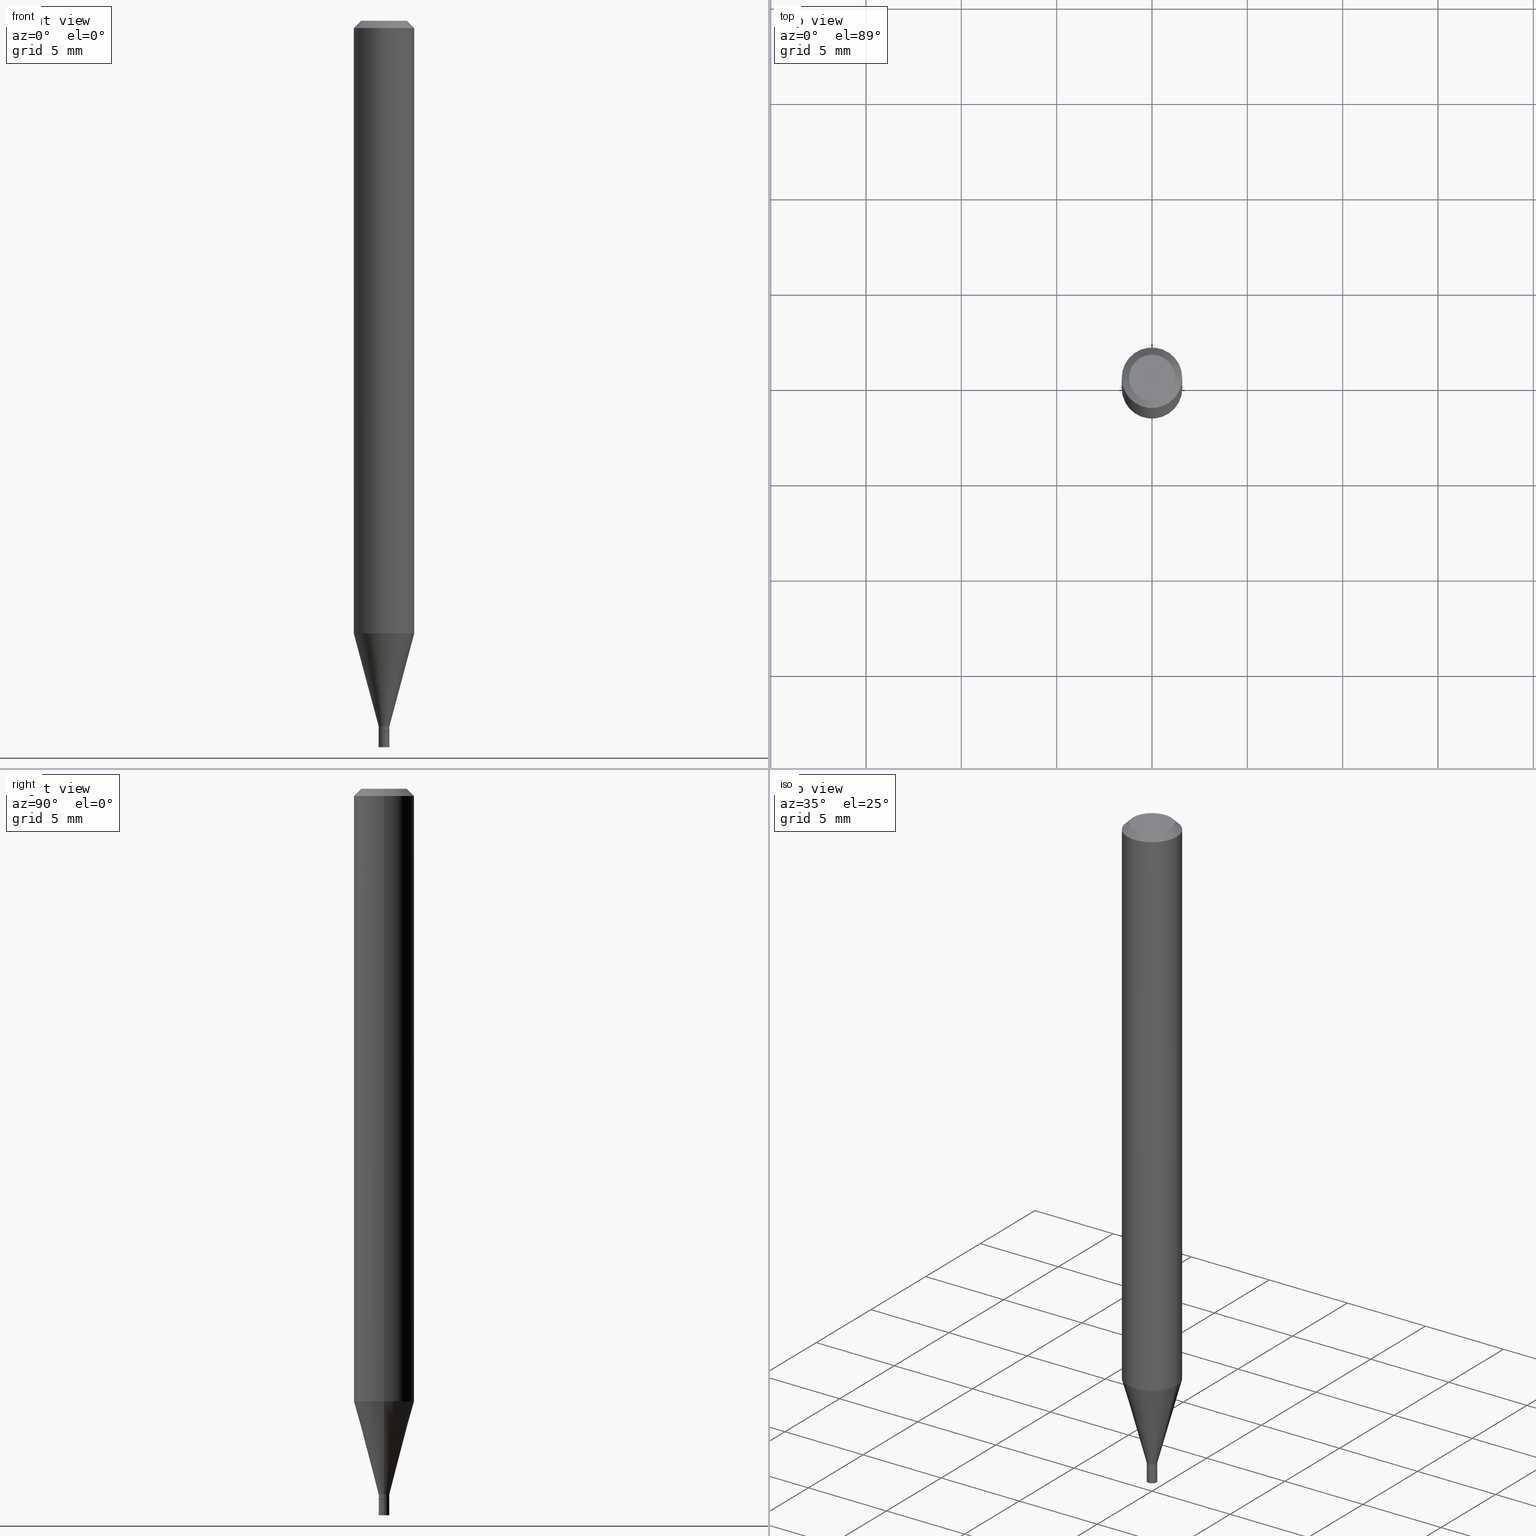
[diagram: canonical four-view strip — front | top / right | iso, engineering-drawing reading convention]
A machine part, canonical four-view strip (front | top / right | iso — engineering-drawing reading convention). The complete STEP part file that produces these views, byte-faithful:
ISO-10303-21;
HEADER;
FILE_DESCRIPTION (( 'STEP AP203' ),
    '1' );
FILE_NAME ('00318.STEP',
    '2024-03-19T20:58:09',
    ( '' ),
    ( '' ),
    'SwSTEP 2.0',
    'SolidWorks 2023',
    '' );
FILE_SCHEMA (( 'CONFIG_CONTROL_DESIGN' ));
ENDSEC;

DATA;
#1 = CLOSED_SHELL ( 'NONE', ( #160, #391, #64, #211, #240, #399, #170, #101, #293, #382, #408, #426 ) ) ;
#2 = EDGE_CURVE ( 'NONE', #431, #316, #237, .T. ) ;
#3 = DIRECTION ( 'NONE',  ( -2.445468806185136597E-29, 3.491481338843145583E-15, 1.000000000000000000 ) ) ;
#4 = VERTEX_POINT ( 'NONE', #100 ) ;
#5 = AXIS2_PLACEMENT_3D ( 'NONE', #419, #63, #340 ) ;
#6 = DIRECTION ( 'NONE',  ( -2.445468806185136597E-29, 3.491481338843145583E-15, 1.000000000000000000 ) ) ;
#7 = ORIENTED_EDGE ( 'NONE', *, *, #412, .T. ) ;
#8 = DIRECTION ( 'NONE',  ( 1.000000000000000000, -6.982962677686265922E-15, 4.876176775795935793E-29 ) ) ;
#9 = CARTESIAN_POINT ( 'NONE',  ( 3.587502738673595692E-29, -5.122003124082895786E-15, -1.467000000000000304 ) ) ;
#10 = DIMENSIONAL_EXPONENTS ( 1.000000000000000000, 0.000000000000000000, 0.000000000000000000, 0.000000000000000000, 0.000000000000000000, 0.000000000000000000, 0.000000000000000000 ) ;
#11 = APPROVAL ( #112, 'UNSPECIFIED' ) ;
#12 = VECTOR ( 'NONE', #323, 39.37007874015748143 ) ;
#13 = VECTOR ( 'NONE', #171, 39.37007874015747433 ) ;
#14 = APPROVAL_STATUS ( 'not_yet_approved' ) ;
#15 = ORGANIZATION ( 'UNSPECIFIED', 'UNSPECIFIED', '' ) ;
#16 = CC_DESIGN_DATE_AND_TIME_ASSIGNMENT ( #136, #223, ( #465 ) ) ;
#17 = DIRECTION ( 'NONE',  ( -2.445468806185136597E-29, 3.491481338843145583E-15, 1.000000000000000000 ) ) ;
#18 = LINE ( 'NONE', #336, #70 ) ;
#19 = DIRECTION ( 'NONE',  ( 1.000000000000000000, -6.982962677686265922E-15, 4.876176775795936353E-29 ) ) ;
#20 = CARTESIAN_POINT ( 'NONE',  ( 0.000000000000000000, 0.000000000000000000, 0.000000000000000000 ) ) ;
#21 = CARTESIAN_POINT ( 'NONE',  ( 3.668203209277705088E-31, -5.237222008264718399E-17, -0.01499999999999999944 ) ) ;
#22 = CARTESIAN_POINT ( 'NONE',  ( -0.06250000000000000000, 3.840629472727444916E-16, -0.01499999999999999944 ) ) ;
#23 = FACE_OUTER_BOUND ( 'NONE', #147, .T. ) ;
#24 = FACE_OUTER_BOUND ( 'NONE', #284, .T. ) ;
#25 = SHAPE_DEFINITION_REPRESENTATION ( #138, #278 ) ;
#26 = EDGE_CURVE ( 'NONE', #77, #109, #222, .T. ) ;
#27 = CARTESIAN_POINT ( 'NONE',  ( -0.01099999999999992130, -5.008928609760852258E-15, -1.457000000000000073 ) ) ;
#28 = CIRCLE ( 'NONE', #90, 0.04749999999999999362 ) ;
#29 = DIRECTION ( 'NONE',  ( 1.000000000000000000, -6.982962677686266711E-15, 4.876176775795935793E-29 ) ) ;
#30 = CIRCLE ( 'NONE', #289, 0.06250000000000000000 ) ;
#31 = CC_DESIGN_APPROVAL ( #76, ( #465 ) ) ;
#32 = ORIENTED_EDGE ( 'NONE', *, *, #310, .F. ) ;
#33 = CC_DESIGN_PERSON_AND_ORGANIZATION_ASSIGNMENT ( #221, #424, ( #277 ) ) ;
#34 = VERTEX_POINT ( 'NONE', #410 ) ;
#35 = ADVANCED_FACE ( 'NONE', ( #228 ), #334, .F. ) ;
#36 = ORIENTED_EDGE ( 'NONE', *, *, #270, .F. ) ;
#37 = EDGE_CURVE ( 'NONE', #242, #34, #28, .T. ) ;
#38 = ORIENTED_EDGE ( 'NONE', *, *, #452, .T. ) ;
#39 = CONICAL_SURFACE ( 'NONE', #417, 0.01049999999999999892, 0.7853981633974718157 ) ;
#40 = AXIS2_PLACEMENT_3D ( 'NONE', #411, #267, #56 ) ;
#41 = CARTESIAN_POINT ( 'NONE',  ( 3.576687321579069994E-29, -5.368277968210015545E-15, -1.500000000000000222 ) ) ;
#42 = ORIENTED_EDGE ( 'NONE', *, *, #327, .T. ) ;
#43 = AXIS2_PLACEMENT_3D ( 'NONE', #196, #134, #261 ) ;
#44 = DIRECTION ( 'NONE',  ( 1.000000000000000000, -6.982962677686267499E-15, 4.852736867747366768E-29 ) ) ;
#45 = ORIENTED_EDGE ( 'NONE', *, *, #197, .T. ) ;
#46 = FACE_OUTER_BOUND ( 'NONE', #122, .T. ) ;
#47 = EDGE_CURVE ( 'NONE', #114, #300, #401, .T. ) ;
#48 = CARTESIAN_POINT ( 'NONE',  ( 3.587502738673595692E-29, -5.122003124082895786E-15, -1.467000000000000304 ) ) ;
#49 = CLOSED_SHELL ( 'NONE', ( #73, #428, #243, #35 ) ) ;
#50 = CIRCLE ( 'NONE', #330, 0.01099999999999992130 ) ;
#51 = CONICAL_SURFACE ( 'NONE', #118, 0.01099999999999992130, 0.2617993877991500740 ) ;
#52 = APPROVAL_DATE_TIME ( #167, #76 ) ;
#53 = PRODUCT ( '00318', '00318', '', ( #371 ) ) ;
#54 = CARTESIAN_POINT ( 'NONE',  ( -1.575719463841376315E-44, 2.249709785436367094E-30, 6.443424916547820620E-16 ) ) ;
#55 = CC_DESIGN_APPROVAL ( #11, ( #393 ) ) ;
#56 = DIRECTION ( 'NONE',  ( 1.000000000000000000, -6.982962677686266711E-15, 4.876176775795935793E-29 ) ) ;
#57 = DESIGN_CONTEXT ( 'detailed design', #355, 'design' ) ;
#58 = ORIENTED_EDGE ( 'NONE', *, *, #324, .T. ) ;
#59 = PERSON_AND_ORGANIZATION ( #128, #15 ) ;
#60 = CARTESIAN_POINT ( 'NONE',  ( 7.681258945458479888E-17, 0.01099999999999487672, -1.467000000000000304 ) ) ;
#61 = DIRECTION ( 'NONE',  ( -2.445468806185136597E-29, 3.491481338843145583E-15, 1.000000000000000000 ) ) ;
#62 = APPROVAL_ROLE ( '' ) ;
#63 = DIRECTION ( 'NONE',  ( -2.445468806185136597E-29, 3.491481338843145583E-15, 1.000000000000000000 ) ) ;
#64 = ADVANCED_FACE ( 'NONE', ( #367 ), #183, .T. ) ;
#65 = DIRECTION ( 'NONE',  ( -2.445468806185136597E-29, 3.491481338843145583E-15, 1.000000000000000000 ) ) ;
#66 = DATE_AND_TIME ( #341, #192 ) ;
#67 = DIRECTION ( 'NONE',  ( 1.000000000000000000, -6.982962677686262766E-15, 0.000000000000000000 ) ) ;
#68 = CARTESIAN_POINT ( 'NONE',  ( 0.01049999999999999892, -5.195324232198601302E-15, -1.467000000000000304 ) ) ;
#69 = EDGE_CURVE ( 'NONE', #4, #354, #18, .T. ) ;
#70 = VECTOR ( 'NONE', #301, 39.37007874015748143 ) ;
#71 = DATE_AND_TIME ( #203, #247 ) ;
#72 = ORIENTED_EDGE ( 'NONE', *, *, #270, .T. ) ;
#73 = ADVANCED_FACE ( 'NONE', ( #165 ), #305, .T. ) ;
#74 = ORIENTED_EDGE ( 'NONE', *, *, #415, .T. ) ;
#75 = ORIENTED_EDGE ( 'NONE', *, *, #441, .F. ) ;
#76 = APPROVAL ( #14, 'UNSPECIFIED' ) ;
#77 = VERTEX_POINT ( 'NONE', #373 ) ;
#78 = UNCERTAINTY_MEASURE_WITH_UNIT (LENGTH_MEASURE( 1.000000000000000082E-05 ), #403, 'distance_accuracy_value', 'NONE');
#79 = EDGE_CURVE ( 'NONE', #422, #297, #443, .T. ) ;
#80 = AXIS2_PLACEMENT_3D ( 'NONE', #397, #219, #363 ) ;
#81 = AXIS2_PLACEMENT_3D ( 'NONE', #379, #108, #67 ) ;
#82 = APPROVAL_PERSON_ORGANIZATION ( #191, #313, #62 ) ;
#83 = DIRECTION ( 'NONE',  ( -2.445468806185136597E-29, 3.491481338843145583E-15, 1.000000000000000000 ) ) ;
#84 = ORIENTED_EDGE ( 'NONE', *, *, #452, .F. ) ;
#85 = DIRECTION ( 'NONE',  ( -2.445468806185136877E-29, 3.491481338843145188E-15, 1.000000000000000000 ) ) ;
#86 = ORIENTED_EDGE ( 'NONE', *, *, #26, .F. ) ;
#87 = FACE_OUTER_BOUND ( 'NONE', #387, .T. ) ;
#88 = FACE_OUTER_BOUND ( 'NONE', #155, .T. ) ;
#89 = PERSON_AND_ORGANIZATION_ROLE ( 'creator' ) ;
#90 = AXIS2_PLACEMENT_3D ( 'NONE', #54, #266, #163 ) ;
#91 = CARTESIAN_POINT ( 'NONE',  ( 3.668203209277705088E-31, -5.237222008264718399E-17, -0.01499999999999999944 ) ) ;
#92 = ORIENTED_EDGE ( 'NONE', *, *, #441, .T. ) ;
#93 = VECTOR ( 'NONE', #205, 39.37007874015748143 ) ;
#94 =( NAMED_UNIT ( * ) SI_UNIT ( $, .STERADIAN. ) SOLID_ANGLE_UNIT ( ) );
#95 = DIRECTION ( 'NONE',  ( -2.445468806185136597E-29, 3.491481338843145583E-15, 1.000000000000000000 ) ) ;
#96 = AXIS2_PLACEMENT_3D ( 'NONE', #333, #17, #162 ) ;
#97 = DIRECTION ( 'NONE',  ( -1.000000000000000000, 6.982962677686266711E-15, 0.000000000000000000 ) ) ;
#98 = DIRECTION ( 'NONE',  ( 1.000000000000000000, -6.982962677686245411E-15, 0.000000000000000000 ) ) ;
#99 = DIRECTION ( 'NONE',  ( 1.000000000000000000, -6.982962677686287221E-15, 0.000000000000000000 ) ) ;
#100 = CARTESIAN_POINT ( 'NONE',  ( -0.01049999999999999892, -5.044746909653973604E-15, -1.467000000000000304 ) ) ;
#101 = ADVANCED_FACE ( 'NONE', ( #335 ), #257, .T. ) ;
#102 = FACE_OUTER_BOUND ( 'NONE', #116, .T. ) ;
#103 = DATE_AND_TIME ( #268, #175 ) ;
#104 = DIRECTION ( 'NONE',  ( 1.000000000000000000, -6.982962677686266711E-15, 0.000000000000000000 ) ) ;
#105 = AXIS2_PLACEMENT_3D ( 'NONE', #9, #83, #159 ) ;
#106 = CARTESIAN_POINT ( 'NONE',  ( 0.000000000000000000, 0.000000000000000000, 0.000000000000000000 ) ) ;
#107 = AXIS2_PLACEMENT_3D ( 'NONE', #229, #61, #198 ) ;
#108 = DIRECTION ( 'NONE',  ( -2.445468806185136597E-29, 3.491481338843145583E-15, 1.000000000000000000 ) ) ;
#109 = VERTEX_POINT ( 'NONE', #166 ) ;
#110 = CARTESIAN_POINT ( 'NONE',  ( -0.01099999999999999936, 7.815970093361101591E-17, -5.410828599280396199E-31 ) ) ;
#111 = CC_DESIGN_PERSON_AND_ORGANIZATION_ASSIGNMENT ( #275, #345, ( #393 ) ) ;
#112 = APPROVAL_STATUS ( 'not_yet_approved' ) ;
#113 = ORIENTED_EDGE ( 'NONE', *, *, #338, .T. ) ;
#114 = VERTEX_POINT ( 'NONE', #306 ) ;
#115 = ORIENTED_EDGE ( 'NONE', *, *, #69, .F. ) ;
#116 = EDGE_LOOP ( 'NONE', ( #348, #42, #218, #86 ) ) ;
#117 = DIRECTION ( 'NONE',  ( 1.000000000000000000, -6.982962677686245411E-15, 0.000000000000000000 ) ) ;
#118 = AXIS2_PLACEMENT_3D ( 'NONE', #169, #308, #281 ) ;
#119 = DIRECTION ( 'NONE',  ( 0.2588190451025213501, 1.565188264969621968E-15, 0.9659258262890682012 ) ) ;
#120 = EDGE_LOOP ( 'NONE', ( #352, #186 ) ) ;
#121 = DIRECTION ( 'NONE',  ( 1.000000000000000000, -6.982962677686295110E-15, 0.000000000000000000 ) ) ;
#122 = EDGE_LOOP ( 'NONE', ( #317, #459 ) ) ;
#123 = CARTESIAN_POINT ( 'NONE',  ( 0.06250000000000000000, -4.364351673553916694E-16, 3.047610484872459871E-30 ) ) ;
#124 = CIRCLE ( 'NONE', #378, 0.01099999999999992130 ) ;
#125 = APPLICATION_CONTEXT ( 'configuration controlled 3d designs of mechanical parts and assemblies' ) ;
#126 = APPROVAL_DATE_TIME ( #103, #313 ) ;
#127 = VECTOR ( 'NONE', #444, 39.37007874015748143 ) ;
#128 = PERSON ( 'UNSPECIFIED', 'UNSPECIFIED', 'UNSPECIFIED', ('UNSPECIFIED'), ('UNSPECIFIED'), ('UNSPECIFIED') ) ;
#129 =( LENGTH_UNIT ( ) NAMED_UNIT ( * ) SI_UNIT ( $, .METRE. ) );
#130 = DIRECTION ( 'NONE',  ( 2.438088387897960049E-29, -3.491481338843145188E-15, -1.000000000000000000 ) ) ;
#131 = CYLINDRICAL_SURFACE ( 'NONE', #107, 0.06250000000000000000 ) ;
#132 = APPROVAL_ROLE ( '' ) ;
#133 = CARTESIAN_POINT ( 'NONE',  ( 3.316907271900976096E-16, 0.04749999999999999362, 1.563258822323416346E-16 ) ) ;
#134 = DIRECTION ( 'NONE',  ( -2.445468806185136597E-29, 3.491481338843145583E-15, 1.000000000000000000 ) ) ;
#135 = CYLINDRICAL_SURFACE ( 'NONE', #40, 0.01099999999999992130 ) ;
#136 = DATE_AND_TIME ( #256, #214 ) ;
#137 = CARTESIAN_POINT ( 'NONE',  ( 0.01099999999999992130, -5.197069972868022806E-15, -1.466500000000000359 ) ) ;
#138 = PRODUCT_DEFINITION_SHAPE ( 'NONE', 'NONE',  #465 ) ;
#139 = DIRECTION ( 'NONE',  ( -1.000000000000000000, 6.982962677686265922E-15, -4.876176775795935793E-29 ) ) ;
#140 = CIRCLE ( 'NONE', #389, 0.01099999999999992130 ) ;
#141 = SECURITY_CLASSIFICATION_LEVEL ( 'unclassified' ) ;
#142 = DIRECTION ( 'NONE',  ( -2.445468806185136877E-29, 3.491481338843145188E-15, 1.000000000000000000 ) ) ;
#143 = AXIS2_PLACEMENT_3D ( 'NONE', #453, #236, #44 ) ;
#144 = CC_DESIGN_APPROVAL ( #313, ( #277 ) ) ;
#145 = CYLINDRICAL_SURFACE ( 'NONE', #311, 0.06250000000000000000 ) ;
#146 = CC_DESIGN_PERSON_AND_ORGANIZATION_ASSIGNMENT ( #59, #339, ( #53 ) ) ;
#147 = EDGE_LOOP ( 'NONE', ( #464, #388, #216, #318 ) ) ;
#148 = ORIENTED_EDGE ( 'NONE', *, *, #79, .F. ) ;
#149 = ORIENTED_EDGE ( 'NONE', *, *, #177, .F. ) ;
#150 = VERTEX_POINT ( 'NONE', #262 ) ;
#151 = CARTESIAN_POINT ( 'NONE',  ( -0.01099999999999992130, -5.042097682479863192E-15, -1.466500000000000359 ) ) ;
#152 = EDGE_CURVE ( 'NONE', #354, #114, #376, .T. ) ;
#153 = DIRECTION ( 'NONE',  ( 1.000000000000000000, -6.982962677686265922E-15, 4.876176775795935793E-29 ) ) ;
#154 = CIRCLE ( 'NONE', #405, 0.01049999999999999892 ) ;
#155 = EDGE_LOOP ( 'NONE', ( #386, #396, #181, #437 ) ) ;
#156 = CARTESIAN_POINT ( 'NONE',  ( 3.587502738673595692E-29, -5.122003124082895786E-15, -1.467000000000000304 ) ) ;
#157 = ORIENTED_EDGE ( 'NONE', *, *, #26, .T. ) ;
#158 = CARTESIAN_POINT ( 'NONE',  ( 0.01099999999999999936, -5.314034597719267489E-15, -1.500000000000000222 ) ) ;
#159 = DIRECTION ( 'NONE',  ( 1.000000000000000000, -6.982962677686287221E-15, 0.000000000000000000 ) ) ;
#160 = ADVANCED_FACE ( 'NONE', ( #194 ), #135, .T. ) ;
#161 = CONICAL_SURFACE ( 'NONE', #234, 0.01099999999999992130, 0.2617993877991500740 ) ;
#162 = DIRECTION ( 'NONE',  ( 1.000000000000000000, -6.982962677686245411E-15, 0.000000000000000000 ) ) ;
#163 = DIRECTION ( 'NONE',  ( 1.000000000000000000, -6.982962677686267499E-15, 4.852736867747366768E-29 ) ) ;
#164 = CARTESIAN_POINT ( 'NONE',  ( 3.668203209277705088E-31, -5.237222008264718399E-17, -0.01499999999999999944 ) ) ;
#165 = FACE_OUTER_BOUND ( 'NONE', #460, .T. ) ;
#166 = CARTESIAN_POINT ( 'NONE',  ( 0.06250000000000000000, -4.888073874380388472E-16, -0.01499999999999999944 ) ) ;
#167 = DATE_AND_TIME ( #298, #434 ) ;
#168 = LINE ( 'NONE', #110, #225 ) ;
#169 = CARTESIAN_POINT ( 'NONE',  ( 3.563048050611744147E-29, -5.087088310694462559E-15, -1.457000000000000073 ) ) ;
#170 = ADVANCED_FACE ( 'NONE', ( #102 ), #131, .T. ) ;
#171 = DIRECTION ( 'NONE',  ( -0.2588190451025213501, 5.211531920934551042E-15, 0.9659258262890682012 ) ) ;
#172 = COORDINATED_UNIVERSAL_TIME_OFFSET ( 5, 0, .BEHIND. ) ;
#173 = CARTESIAN_POINT ( 'NONE',  ( -0.01099999999999999936, -5.101452865240196680E-15, -1.500000000000000222 ) ) ;
#174 = AXIS2_PLACEMENT_3D ( 'NONE', #106, #65, #272 ) ;
#175 = LOCAL_TIME ( 16, 58, 9.000000000000000000, #199 ) ;
#176 = ORIENTED_EDGE ( 'NONE', *, *, #2, .T. ) ;
#177 = EDGE_CURVE ( 'NONE', #242, #77, #337, .T. ) ;
#178 = ORIENTED_EDGE ( 'NONE', *, *, #152, .T. ) ;
#179 = ORIENTED_EDGE ( 'NONE', *, *, #412, .F. ) ;
#180 = CIRCLE ( 'NONE', #332, 0.01099999999999999936 ) ;
#181 = ORIENTED_EDGE ( 'NONE', *, *, #375, .T. ) ;
#182 = DIRECTION ( 'NONE',  ( 1.000000000000000000, -6.982962677686295110E-15, 0.000000000000000000 ) ) ;
#183 = CONICAL_SURFACE ( 'NONE', #344, 0.06250000000000000000, 0.7853981633974268517 ) ;
#184 = VERTEX_POINT ( 'NONE', #137 ) ;
#185 = DIRECTION ( 'NONE',  ( 1.000000000000000000, -6.982962677686287221E-15, 0.000000000000000000 ) ) ;
#186 = ORIENTED_EDGE ( 'NONE', *, *, #353, .T. ) ;
#187 = DIRECTION ( 'NONE',  ( -2.438088387897960049E-29, 3.491481338843145188E-15, 1.000000000000000000 ) ) ;
#188 = DIRECTION ( 'NONE',  ( 1.000000000000000000, -6.982962677686287221E-15, 0.000000000000000000 ) ) ;
#189 = DIRECTION ( 'NONE',  ( 0.000000000000000000, 0.000000000000000000, 1.000000000000000000 ) ) ;
#190 = VECTOR ( 'NONE', #119, 39.37007874015747433 ) ;
#191 = PERSON_AND_ORGANIZATION ( #128, #15 ) ;
#192 = LOCAL_TIME ( 16, 58, 9.000000000000000000, #172 ) ;
#193 = DIRECTION ( 'NONE',  ( -1.000000000000000000, 6.982962677686265922E-15, -4.876176775795935793E-29 ) ) ;
#194 = FACE_OUTER_BOUND ( 'NONE', #207, .T. ) ;
#195 = ORIENTED_EDGE ( 'NONE', *, *, #37, .F. ) ;
#196 = CARTESIAN_POINT ( 'NONE',  ( 3.563048050611744147E-29, -5.087088310694462559E-15, -1.457000000000000073 ) ) ;
#197 = EDGE_CURVE ( 'NONE', #150, #184, #202, .T. ) ;
#198 = DIRECTION ( 'NONE',  ( 1.000000000000000000, -6.982962677686266711E-15, 4.876176775795935793E-29 ) ) ;
#199 = COORDINATED_UNIVERSAL_TIME_OFFSET ( 5, 0, .BEHIND. ) ;
#200 = DIRECTION ( 'NONE',  ( -2.445468806185136877E-29, 3.491481338843145188E-15, 1.000000000000000000 ) ) ;
#201 = DATE_TIME_ROLE ( 'classification_date' ) ;
#202 = LINE ( 'NONE', #68, #93 ) ;
#203 = CALENDAR_DATE ( 2024, 19, 3 ) ;
#204 = LINE ( 'NONE', #27, #13 ) ;
#205 = DIRECTION ( 'NONE',  ( 0.7071067811865642261, -2.468850131082431399E-15, 0.7071067811865309194 ) ) ;
#206 = AXIS2_PLACEMENT_3D ( 'NONE', #60, #130, #193 ) ;
#207 = EDGE_LOOP ( 'NONE', ( #92, #178, #253, #429 ) ) ;
#208 = CIRCLE ( 'NONE', #5, 0.01099999999999999936 ) ;
#209 = DIRECTION ( 'NONE',  ( -2.445468806185136877E-29, 3.491481338843145188E-15, 1.000000000000000000 ) ) ;
#210 = ORIENTED_EDGE ( 'NONE', *, *, #152, .F. ) ;
#211 = ADVANCED_FACE ( 'NONE', ( #23 ), #145, .T. ) ;
#212 = VERTEX_POINT ( 'NONE', #342 ) ;
#213 = AXIS2_PLACEMENT_3D ( 'NONE', #288, #6, #188 ) ;
#214 = LOCAL_TIME ( 16, 58, 9.000000000000000000, #230 ) ;
#215 = FACE_OUTER_BOUND ( 'NONE', #248, .T. ) ;
#216 = ORIENTED_EDGE ( 'NONE', *, *, #279, .F. ) ;
#217 = CARTESIAN_POINT ( 'NONE',  ( 3.587502738673595692E-29, -5.122003124082895786E-15, -1.467000000000000304 ) ) ;
#218 = ORIENTED_EDGE ( 'NONE', *, *, #365, .T. ) ;
#219 = DIRECTION ( 'NONE',  ( -2.445468806185136597E-29, 3.491481338843145583E-15, 1.000000000000000000 ) ) ;
#220 = CARTESIAN_POINT ( 'NONE',  ( 0.01099999999999992130, -5.163900900149011871E-15, -1.457000000000000073 ) ) ;
#221 = PERSON_AND_ORGANIZATION ( #128, #15 ) ;
#222 = CIRCLE ( 'NONE', #384, 0.06250000000000000000 ) ;
#223 = DATE_TIME_ROLE ( 'creation_date' ) ;
#224 = DIRECTION ( 'NONE',  ( 2.445468806185136597E-29, -3.491481338843145583E-15, -1.000000000000000000 ) ) ;
#225 = VECTOR ( 'NONE', #200, 39.37007874015748143 ) ;
#226 = ORIENTED_EDGE ( 'NONE', *, *, #375, .F. ) ;
#227 = APPROVAL_PERSON_ORGANIZATION ( #413, #76, #132 ) ;
#228 = FACE_OUTER_BOUND ( 'NONE', #402, .T. ) ;
#229 = CARTESIAN_POINT ( 'NONE',  ( 0.000000000000000000, 0.000000000000000000, 0.000000000000000000 ) ) ;
#230 = COORDINATED_UNIVERSAL_TIME_OFFSET ( 5, 0, .BEHIND. ) ;
#231 = FACE_OUTER_BOUND ( 'NONE', #325, .T. ) ;
#232 = DIRECTION ( 'NONE',  ( 2.445468806185136597E-29, -3.491481338843145583E-15, -1.000000000000000000 ) ) ;
#233 = LINE ( 'NONE', #451, #368 ) ;
#234 = AXIS2_PLACEMENT_3D ( 'NONE', #357, #360, #121 ) ;
#235 = DIRECTION ( 'NONE',  ( 0.7071067811865323627, -7.319954787623203981E-15, -0.7071067811865626718 ) ) ;
#236 = DIRECTION ( 'NONE',  ( -2.445468806185136597E-29, 3.491481338843145583E-15, 1.000000000000000000 ) ) ;
#237 = LINE ( 'NONE', #239, #287 ) ;
#238 = AXIS2_PLACEMENT_3D ( 'NONE', #442, #446, #19 ) ;
#239 = CARTESIAN_POINT ( 'NONE',  ( 0.01099999999999999936, -7.681258945454891804E-17, 5.363794453375529652E-31 ) ) ;
#240 = ADVANCED_FACE ( 'NONE', ( #24 ), #51, .T. ) ;
#241 = VERTEX_POINT ( 'NONE', #173 ) ;
#242 = VERTEX_POINT ( 'NONE', #312 ) ;
#243 = ADVANCED_FACE ( 'NONE', ( #231 ), #423, .T. ) ;
#244 = AXIS2_PLACEMENT_3D ( 'NONE', #406, #369, #302 ) ;
#245 = CIRCLE ( 'NONE', #213, 0.01049999999999999892 ) ;
#246 = CARTESIAN_POINT ( 'NONE',  ( 3.586280004270504012E-29, -5.120257383413474282E-15, -1.466500000000000359 ) ) ;
#247 = LOCAL_TIME ( 16, 58, 9.000000000000000000, #350 ) ;
#248 = EDGE_LOOP ( 'NONE', ( #7, #394, #75, #282 ) ) ;
#249 = LINE ( 'NONE', #123, #12 ) ;
#250 = ORIENTED_EDGE ( 'NONE', *, *, #177, .T. ) ;
#251 = DIRECTION ( 'NONE',  ( -2.445468806185136597E-29, 3.491481338843145583E-15, 1.000000000000000000 ) ) ;
#252 = EDGE_CURVE ( 'NONE', #297, #77, #233, .T. ) ;
#253 = ORIENTED_EDGE ( 'NONE', *, *, #415, .F. ) ;
#254 = DIRECTION ( 'NONE',  ( 1.000000000000000000, -6.982962677686295110E-15, 0.000000000000000000 ) ) ;
#255 = EDGE_CURVE ( 'NONE', #241, #212, #168, .T. ) ;
#256 = CALENDAR_DATE ( 2024, 19, 3 ) ;
#257 = CONICAL_SURFACE ( 'NONE', #319, 0.06250000000000000000, 0.7853981633974268517 ) ;
#258 = LENGTH_MEASURE_WITH_UNIT ( LENGTH_MEASURE( 0.02539999999999999897 ), #129 );
#259 = CC_DESIGN_PERSON_AND_ORGANIZATION_ASSIGNMENT ( #449, #89, ( #465 ) ) ;
#260 = ORIENTED_EDGE ( 'NONE', *, *, #310, .T. ) ;
#261 = DIRECTION ( 'NONE',  ( 1.000000000000000000, -6.982962677686295110E-15, 0.000000000000000000 ) ) ;
#262 = CARTESIAN_POINT ( 'NONE',  ( 0.01049999999999999892, -5.195324232198601302E-15, -1.467000000000000304 ) ) ;
#263 = VECTOR ( 'NONE', #235, 39.37007874015748143 ) ;
#264 = COORDINATED_UNIVERSAL_TIME_OFFSET ( 5, 0, .BEHIND. ) ;
#265 = DIRECTION ( 'NONE',  ( 2.438088387897960049E-29, -3.491481338843145188E-15, -1.000000000000000000 ) ) ;
#266 = DIRECTION ( 'NONE',  ( -2.445468806185136597E-29, 3.491481338843145583E-15, 1.000000000000000000 ) ) ;
#267 = DIRECTION ( 'NONE',  ( -2.445468806185136597E-29, 3.491481338843145583E-15, 1.000000000000000000 ) ) ;
#268 = CALENDAR_DATE ( 2024, 19, 3 ) ;
#269 = CARTESIAN_POINT ( 'NONE',  ( -0.06250000000000000000, -3.971934234706977480E-15, -1.264799383410203149 ) ) ;
#270 = EDGE_CURVE ( 'NONE', #34, #109, #450, .T. ) ;
#271 = PERSON_AND_ORGANIZATION ( #128, #15 ) ;
#272 = DIRECTION ( 'NONE',  ( 1.000000000000000000, -6.982962677686265922E-15, 4.876176775795936353E-29 ) ) ;
#273 = AXIS2_PLACEMENT_3D ( 'NONE', #41, #187, #8 ) ;
#274 = CIRCLE ( 'NONE', #81, 0.06250000000000000000 ) ;
#275 = PERSON_AND_ORGANIZATION ( #128, #15 ) ;
#276 = DIRECTION ( 'NONE',  ( -2.445468806185136597E-29, 3.491481338843145583E-15, 1.000000000000000000 ) ) ;
#277 = PRODUCT_DEFINITION_FORMATION_WITH_SPECIFIED_SOURCE ( 'ANY', '', #53, .NOT_KNOWN. ) ;
#278 = ADVANCED_BREP_SHAPE_REPRESENTATION ( '00318', ( #304, #462, #418 ), #356 ) ;
#279 = EDGE_CURVE ( 'NONE', #109, #77, #30, .T. ) ;
#280 = APPROVAL_DATE_TIME ( #71, #11 ) ;
#281 = DIRECTION ( 'NONE',  ( 1.000000000000000000, -6.982962677686295110E-15, 0.000000000000000000 ) ) ;
#282 = ORIENTED_EDGE ( 'NONE', *, *, #197, .F. ) ;
#283 = ORIENTED_EDGE ( 'NONE', *, *, #361, .T. ) ;
#284 = EDGE_LOOP ( 'NONE', ( #74, #113, #148, #226 ) ) ;
#285 = ORIENTED_EDGE ( 'NONE', *, *, #361, .F. ) ;
#286 = LINE ( 'NONE', #433, #390 ) ;
#287 = VECTOR ( 'NONE', #209, 39.37007874015748143 ) ;
#288 = CARTESIAN_POINT ( 'NONE',  ( 3.587502738673595692E-29, -5.122003124082895786E-15, -1.467000000000000304 ) ) ;
#289 = AXIS2_PLACEMENT_3D ( 'NONE', #458, #276, #104 ) ;
#290 = ORIENTED_EDGE ( 'NONE', *, *, #358, .T. ) ;
#291 = DIRECTION ( 'NONE',  ( -2.445468806185136597E-29, 3.491481338843145583E-15, 1.000000000000000000 ) ) ;
#292 = EDGE_LOOP ( 'NONE', ( #36, #195, #250, #157 ) ) ;
#293 = ADVANCED_FACE ( 'NONE', ( #307 ), #309, .F. ) ;
#294 = CARTESIAN_POINT ( 'NONE',  ( 3.586280004270504012E-29, -5.120257383413474282E-15, -1.466500000000000359 ) ) ;
#295 = DIRECTION ( 'NONE',  ( -2.438088387897960049E-29, 3.491481338843145188E-15, 1.000000000000000000 ) ) ;
#296 = CONICAL_SURFACE ( 'NONE', #105, 0.01049999999999999892, 0.7853981633974718157 ) ;
#297 = VERTEX_POINT ( 'NONE', #269 ) ;
#298 = CALENDAR_DATE ( 2024, 19, 3 ) ;
#299 = VECTOR ( 'NONE', #414, 39.37007874015748143 ) ;
#300 = VERTEX_POINT ( 'NONE', #409 ) ;
#301 = DIRECTION ( 'NONE',  ( -0.7071067811865642261, 7.493145998870414114E-15, 0.7071067811865309194 ) ) ;
#302 = DIRECTION ( 'NONE',  ( 1.000000000000000000, -6.982962677686262766E-15, 0.000000000000000000 ) ) ;
#303 = EDGE_LOOP ( 'NONE', ( #362, #72, #427, #149 ) ) ;
#304 = MANIFOLD_SOLID_BREP ( 'Body-Move/Copy2[1]', #49 ) ;
#305 = CYLINDRICAL_SURFACE ( 'NONE', #238, 0.01099999999999999936 ) ;
#306 = CARTESIAN_POINT ( 'NONE',  ( -0.01099999999999992130, -4.490431422233914869E-15, -1.457000000000000073 ) ) ;
#307 = FACE_OUTER_BOUND ( 'NONE', #120, .T. ) ;
#308 = DIRECTION ( 'NONE',  ( -2.445468806185136597E-29, 3.491481338843145583E-15, 1.000000000000000000 ) ) ;
#309 = PLANE ( 'NONE',  #347 ) ;
#310 = EDGE_CURVE ( 'NONE', #4, #150, #154, .T. ) ;
#311 = AXIS2_PLACEMENT_3D ( 'NONE', #346, #343, #29 ) ;
#312 = CARTESIAN_POINT ( 'NONE',  ( -0.04749999999999999362, 3.578768372314221846E-16, 6.443424916547796954E-16 ) ) ;
#313 = APPROVAL ( #407, 'UNSPECIFIED' ) ;
#314 = CC_DESIGN_SECURITY_CLASSIFICATION ( #393, ( #277 ) ) ;
#315 = ORIENTED_EDGE ( 'NONE', *, *, #447, .T. ) ;
#316 = VERTEX_POINT ( 'NONE', #374 ) ;
#317 = ORIENTED_EDGE ( 'NONE', *, *, #463, .F. ) ;
#318 = ORIENTED_EDGE ( 'NONE', *, *, #365, .F. ) ;
#319 = AXIS2_PLACEMENT_3D ( 'NONE', #164, #232, #97 ) ;
#320 = DIRECTION ( 'NONE',  ( 1.000000000000000000, -6.982962677686295110E-15, 0.000000000000000000 ) ) ;
#321 = CYLINDRICAL_SURFACE ( 'NONE', #80, 0.01099999999999992130 ) ;
#322 = ORIENTED_EDGE ( 'NONE', *, *, #255, .F. ) ;
#323 = DIRECTION ( 'NONE',  ( -2.445468806185136877E-29, 3.491481338843145188E-15, 1.000000000000000000 ) ) ;
#324 = EDGE_CURVE ( 'NONE', #241, #431, #208, .T. ) ;
#325 = EDGE_LOOP ( 'NONE', ( #322, #58, #176, #84 ) ) ;
#326 = PLANE ( 'NONE',  #273 ) ;
#327 = EDGE_CURVE ( 'NONE', #297, #422, #274, .T. ) ;
#328 = CARTESIAN_POINT ( 'NONE',  ( 3.587502738673595692E-29, -5.122003124082895786E-15, -1.467000000000000304 ) ) ;
#329 =( NAMED_UNIT ( * ) PLANE_ANGLE_UNIT ( ) SI_UNIT ( $, .RADIAN. ) );
#330 = AXIS2_PLACEMENT_3D ( 'NONE', #436, #251, #320 ) ;
#331 = CIRCLE ( 'NONE', #143, 0.04749999999999999362 ) ;
#332 = AXIS2_PLACEMENT_3D ( 'NONE', #48, #366, #98 ) ;
#333 = CARTESIAN_POINT ( 'NONE',  ( 3.668203209277704895E-29, -5.237222008264718177E-15, -1.500000000000000222 ) ) ;
#334 = PLANE ( 'NONE',  #206 ) ;
#335 = FACE_OUTER_BOUND ( 'NONE', #292, .T. ) ;
#336 = CARTESIAN_POINT ( 'NONE',  ( -0.01049999999999999892, -5.047396136828084806E-15, -1.467000000000000304 ) ) ;
#337 = LINE ( 'NONE', #22, #299 ) ;
#338 = EDGE_CURVE ( 'NONE', #114, #297, #204, .T. ) ;
#339 = PERSON_AND_ORGANIZATION_ROLE ( 'design_owner' ) ;
#340 = DIRECTION ( 'NONE',  ( 1.000000000000000000, -6.982962677686245411E-15, 0.000000000000000000 ) ) ;
#341 = CALENDAR_DATE ( 2024, 19, 3 ) ;
#342 = CARTESIAN_POINT ( 'NONE',  ( -0.01099999999999999936, -5.101452865240196680E-15, -1.467000000000000304 ) ) ;
#343 = DIRECTION ( 'NONE',  ( -2.445468806185136597E-29, 3.491481338843145583E-15, 1.000000000000000000 ) ) ;
#344 = AXIS2_PLACEMENT_3D ( 'NONE', #21, #224, #404 ) ;
#345 = PERSON_AND_ORGANIZATION_ROLE ( 'classification_officer' ) ;
#346 = CARTESIAN_POINT ( 'NONE',  ( 0.000000000000000000, 0.000000000000000000, 0.000000000000000000 ) ) ;
#347 = AXIS2_PLACEMENT_3D ( 'NONE', #133, #265, #139 ) ;
#348 = ORIENTED_EDGE ( 'NONE', *, *, #252, .F. ) ;
#349 = CIRCLE ( 'NONE', #96, 0.01099999999999999936 ) ;
#350 = COORDINATED_UNIVERSAL_TIME_OFFSET ( 5, 0, .BEHIND. ) ;
#351 = EDGE_LOOP ( 'NONE', ( #179, #32 ) ) ;
#352 = ORIENTED_EDGE ( 'NONE', *, *, #37, .T. ) ;
#353 = EDGE_CURVE ( 'NONE', #34, #242, #331, .T. ) ;
#354 = VERTEX_POINT ( 'NONE', #151 ) ;
#355 = APPLICATION_CONTEXT ( 'configuration controlled 3d designs of mechanical parts and assemblies' ) ;
#356 =( GEOMETRIC_REPRESENTATION_CONTEXT ( 3 ) GLOBAL_UNCERTAINTY_ASSIGNED_CONTEXT ( ( #78 ) ) GLOBAL_UNIT_ASSIGNED_CONTEXT ( ( #403, #329, #94 ) ) REPRESENTATION_CONTEXT ( 'NONE', 'WORKASPACE' ) );
#357 = CARTESIAN_POINT ( 'NONE',  ( 3.563048050611744147E-29, -5.087088310694462559E-15, -1.457000000000000073 ) ) ;
#358 = EDGE_CURVE ( 'NONE', #184, #300, #286, .T. ) ;
#359 = ORIENTED_EDGE ( 'NONE', *, *, #463, .T. ) ;
#360 = DIRECTION ( 'NONE',  ( -2.445468806185136597E-29, 3.491481338843145583E-15, 1.000000000000000000 ) ) ;
#361 = EDGE_CURVE ( 'NONE', #316, #212, #455, .T. ) ;
#362 = ORIENTED_EDGE ( 'NONE', *, *, #353, .F. ) ;
#363 = DIRECTION ( 'NONE',  ( 1.000000000000000000, -6.982962677686266711E-15, 4.876176775795935793E-29 ) ) ;
#364 = FACE_OUTER_BOUND ( 'NONE', #461, .T. ) ;
#365 = EDGE_CURVE ( 'NONE', #422, #109, #249, .T. ) ;
#366 = DIRECTION ( 'NONE',  ( -2.445468806185136597E-29, 3.491481338843145583E-15, 1.000000000000000000 ) ) ;
#367 = FACE_OUTER_BOUND ( 'NONE', #303, .T. ) ;
#368 = VECTOR ( 'NONE', #142, 39.37007874015748143 ) ;
#369 = DIRECTION ( 'NONE',  ( -2.445468806185136597E-29, 3.491481338843145583E-15, 1.000000000000000000 ) ) ;
#370 = ORIENTED_EDGE ( 'NONE', *, *, #447, .F. ) ;
#371 = MECHANICAL_CONTEXT ( 'NONE', #125, 'mechanical' ) ;
#372 = DIRECTION ( 'NONE',  ( 1.000000000000000000, -6.982962677686266711E-15, 0.000000000000000000 ) ) ;
#373 = CARTESIAN_POINT ( 'NONE',  ( -0.06250000000000000000, -1.790108622469781169E-15, -0.01499999999999999944 ) ) ;
#374 = CARTESIAN_POINT ( 'NONE',  ( 0.01099999999999999936, -5.198815713537444309E-15, -1.467000000000000304 ) ) ;
#375 = EDGE_CURVE ( 'NONE', #300, #422, #398, .T. ) ;
#376 = LINE ( 'NONE', #448, #127 ) ;
#377 = CARTESIAN_POINT ( 'NONE',  ( 3.587502738673595692E-29, -5.122003124082895786E-15, -1.467000000000000304 ) ) ;
#378 = AXIS2_PLACEMENT_3D ( 'NONE', #246, #438, #254 ) ;
#379 = CARTESIAN_POINT ( 'NONE',  ( 3.093027438211846075E-29, -4.416023444557040885E-15, -1.264799383410203149 ) ) ;
#380 = PERSON_AND_ORGANIZATION_ROLE ( 'design_supplier' ) ;
#381 = CARTESIAN_POINT ( 'NONE',  ( 0.06250000000000000000, -4.811533449433679005E-16, -0.01499999999999999944 ) ) ;
#382 = ADVANCED_FACE ( 'NONE', ( #395 ), #392, .F. ) ;
#383 = CC_DESIGN_DATE_AND_TIME_ASSIGNMENT ( #66, #201, ( #393 ) ) ;
#384 = AXIS2_PLACEMENT_3D ( 'NONE', #91, #95, #372 ) ;
#385 = ORIENTED_EDGE ( 'NONE', *, *, #2, .F. ) ;
#386 = ORIENTED_EDGE ( 'NONE', *, *, #338, .F. ) ;
#387 = EDGE_LOOP ( 'NONE', ( #210, #315, #290, #425 ) ) ;
#388 = ORIENTED_EDGE ( 'NONE', *, *, #252, .T. ) ;
#389 = AXIS2_PLACEMENT_3D ( 'NONE', #294, #3, #182 ) ;
#390 = VECTOR ( 'NONE', #85, 39.37007874015748143 ) ;
#391 = ADVANCED_FACE ( 'NONE', ( #215 ), #296, .T. ) ;
#392 = PLANE ( 'NONE',  #454 ) ;
#393 = SECURITY_CLASSIFICATION ( '', '', #141 ) ;
#394 = ORIENTED_EDGE ( 'NONE', *, *, #69, .T. ) ;
#395 = FACE_OUTER_BOUND ( 'NONE', #351, .T. ) ;
#396 = ORIENTED_EDGE ( 'NONE', *, *, #47, .T. ) ;
#397 = CARTESIAN_POINT ( 'NONE',  ( 0.000000000000000000, 0.000000000000000000, 0.000000000000000000 ) ) ;
#398 = LINE ( 'NONE', #220, #190 ) ;
#399 = ADVANCED_FACE ( 'NONE', ( #88 ), #161, .T. ) ;
#400 = APPLICATION_PROTOCOL_DEFINITION ( 'international standard', 'config_control_design', 1994, #125 ) ;
#401 = CIRCLE ( 'NONE', #43, 0.01099999999999992130 ) ;
#402 = EDGE_LOOP ( 'NONE', ( #283, #38 ) ) ;
#403 =( CONVERSION_BASED_UNIT ( 'INCH', #258 ) LENGTH_UNIT ( ) NAMED_UNIT ( #10 ) );
#404 = DIRECTION ( 'NONE',  ( -1.000000000000000000, 6.982962677686266711E-15, 0.000000000000000000 ) ) ;
#405 = AXIS2_PLACEMENT_3D ( 'NONE', #377, #416, #99 ) ;
#406 = CARTESIAN_POINT ( 'NONE',  ( 3.093027438211846075E-29, -4.416023444557040885E-15, -1.264799383410203149 ) ) ;
#407 = APPROVAL_STATUS ( 'not_yet_approved' ) ;
#408 = ADVANCED_FACE ( 'NONE', ( #364 ), #39, .T. ) ;
#409 = CARTESIAN_POINT ( 'NONE',  ( 0.01099999999999992130, -5.163900900149011871E-15, -1.457000000000000073 ) ) ;
#410 = CARTESIAN_POINT ( 'NONE',  ( 0.04749999999999999362, -4.035134999187566790E-16, 6.443424916547846258E-16 ) ) ;
#411 = CARTESIAN_POINT ( 'NONE',  ( 0.000000000000000000, 0.000000000000000000, 0.000000000000000000 ) ) ;
#412 = EDGE_CURVE ( 'NONE', #150, #4, #245, .T. ) ;
#413 = PERSON_AND_ORGANIZATION ( #128, #15 ) ;
#414 = DIRECTION ( 'NONE',  ( -0.7071067811865323627, 2.468850131082098105E-15, -0.7071067811865626718 ) ) ;
#415 = EDGE_CURVE ( 'NONE', #300, #114, #50, .T. ) ;
#416 = DIRECTION ( 'NONE',  ( -2.445468806185136597E-29, 3.491481338843145583E-15, 1.000000000000000000 ) ) ;
#417 = AXIS2_PLACEMENT_3D ( 'NONE', #328, #291, #185 ) ;
#418 = AXIS2_PLACEMENT_3D ( 'NONE', #20, #189, #440 ) ;
#419 = CARTESIAN_POINT ( 'NONE',  ( 3.668203209277704895E-29, -5.237222008264718177E-15, -1.500000000000000222 ) ) ;
#420 = CC_DESIGN_PERSON_AND_ORGANIZATION_ASSIGNMENT ( #457, #380, ( #277 ) ) ;
#421 = APPROVAL_ROLE ( '' ) ;
#422 = VERTEX_POINT ( 'NONE', #466 ) ;
#423 = CYLINDRICAL_SURFACE ( 'NONE', #174, 0.01099999999999999936 ) ;
#424 = PERSON_AND_ORGANIZATION_ROLE ( 'creator' ) ;
#425 = ORIENTED_EDGE ( 'NONE', *, *, #47, .F. ) ;
#426 = ADVANCED_FACE ( 'NONE', ( #87 ), #321, .T. ) ;
#427 = ORIENTED_EDGE ( 'NONE', *, *, #279, .T. ) ;
#428 = ADVANCED_FACE ( 'NONE', ( #46 ), #326, .F. ) ;
#429 = ORIENTED_EDGE ( 'NONE', *, *, #358, .F. ) ;
#430 = PRODUCT_RELATED_PRODUCT_CATEGORY ( 'detail', '', ( #53 ) ) ;
#431 = VERTEX_POINT ( 'NONE', #158 ) ;
#432 = DIRECTION ( 'NONE',  ( -2.445468806185136597E-29, 3.491481338843145583E-15, 1.000000000000000000 ) ) ;
#433 = CARTESIAN_POINT ( 'NONE',  ( 0.01099999999999992130, -7.681258945454838802E-17, 5.363794453375491117E-31 ) ) ;
#434 = LOCAL_TIME ( 16, 58, 9.000000000000000000, #264 ) ;
#435 = ORIENTED_EDGE ( 'NONE', *, *, #255, .T. ) ;
#436 = CARTESIAN_POINT ( 'NONE',  ( 3.563048050611744147E-29, -5.087088310694462559E-15, -1.457000000000000073 ) ) ;
#437 = ORIENTED_EDGE ( 'NONE', *, *, #327, .F. ) ;
#438 = DIRECTION ( 'NONE',  ( -2.445468806185136597E-29, 3.491481338843145583E-15, 1.000000000000000000 ) ) ;
#439 = AXIS2_PLACEMENT_3D ( 'NONE', #156, #432, #117 ) ;
#440 = DIRECTION ( 'NONE',  ( 1.000000000000000000, 0.000000000000000000, 0.000000000000000000 ) ) ;
#441 = EDGE_CURVE ( 'NONE', #184, #354, #140, .T. ) ;
#442 = CARTESIAN_POINT ( 'NONE',  ( 0.000000000000000000, 0.000000000000000000, 0.000000000000000000 ) ) ;
#443 = CIRCLE ( 'NONE', #244, 0.06250000000000000000 ) ;
#444 = DIRECTION ( 'NONE',  ( -2.445468806185136877E-29, 3.491481338843145188E-15, 1.000000000000000000 ) ) ;
#445 = APPLICATION_PROTOCOL_DEFINITION ( 'international standard', 'config_control_design', 1994, #355 ) ;
#446 = DIRECTION ( 'NONE',  ( -2.445468806185136597E-29, 3.491481338843145583E-15, 1.000000000000000000 ) ) ;
#447 = EDGE_CURVE ( 'NONE', #354, #184, #124, .T. ) ;
#448 = CARTESIAN_POINT ( 'NONE',  ( -0.01099999999999992130, 7.815970093361046124E-17, -5.410828599280358539E-31 ) ) ;
#449 = PERSON_AND_ORGANIZATION ( #128, #15 ) ;
#450 = LINE ( 'NONE', #381, #263 ) ;
#451 = CARTESIAN_POINT ( 'NONE',  ( -0.06250000000000000000, 4.440892098500626162E-16, -3.074334431409316114E-30 ) ) ;
#452 = EDGE_CURVE ( 'NONE', #212, #316, #180, .T. ) ;
#453 = CARTESIAN_POINT ( 'NONE',  ( -1.575719463841376315E-44, 2.249709785436367094E-30, 6.443424916547820620E-16 ) ) ;
#454 = AXIS2_PLACEMENT_3D ( 'NONE', #217, #295, #153 ) ;
#455 = CIRCLE ( 'NONE', #439, 0.01099999999999999936 ) ;
#456 = APPROVAL_PERSON_ORGANIZATION ( #271, #11, #421 ) ;
#457 = PERSON_AND_ORGANIZATION ( #128, #15 ) ;
#458 = CARTESIAN_POINT ( 'NONE',  ( 3.668203209277705088E-31, -5.237222008264718399E-17, -0.01499999999999999944 ) ) ;
#459 = ORIENTED_EDGE ( 'NONE', *, *, #324, .F. ) ;
#460 = EDGE_LOOP ( 'NONE', ( #359, #435, #285, #385 ) ) ;
#461 = EDGE_LOOP ( 'NONE', ( #115, #260, #45, #370 ) ) ;
#462 = MANIFOLD_SOLID_BREP ( 'Body-Move/Copy2[2]', #1 ) ;
#463 = EDGE_CURVE ( 'NONE', #431, #241, #349, .T. ) ;
#464 = ORIENTED_EDGE ( 'NONE', *, *, #79, .T. ) ;
#465 = PRODUCT_DEFINITION ( 'UNKNOWN', '', #277, #57 ) ;
#466 = CARTESIAN_POINT ( 'NONE',  ( 0.06250000000000000000, -4.852458611912431766E-15, -1.264799383410203149 ) ) ;
ENDSEC;
END-ISO-10303-21;
